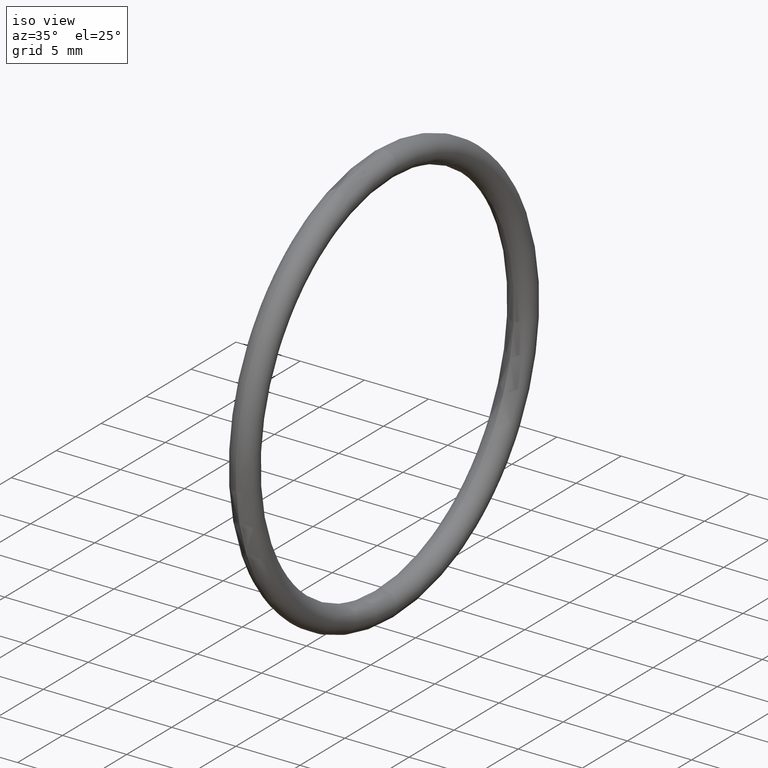
[diagram: clean part render]
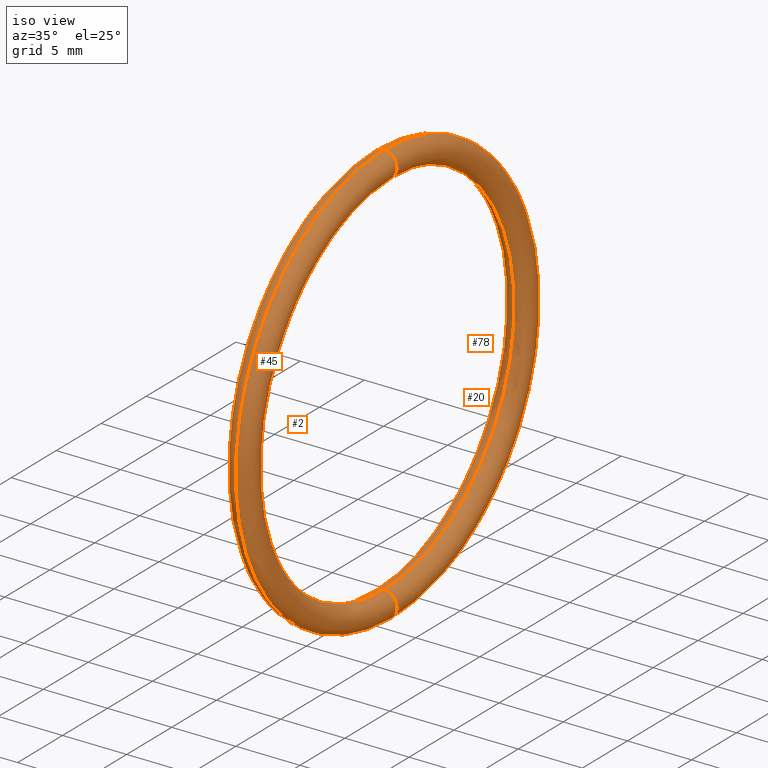
[diagram: same view with one multi-face feature highlighted, each face labeled with its STEP entity id]
A machine part, iso view. The highlighted faces form ONE feature: a constant-radius fillet chain: 4 tangent blend faces with common blend radius 1.016 mm. The faces share edges in the B-rep.
Their STEP definitions:
[1] entity #2 (Torus):
#1 = EDGE_CURVE ( 'NONE', #60, #59, #43, .T. ) ;
#2 = ADVANCED_FACE ( 'NONE', ( #44 ), #15, .T. ) ;
#11 = EDGE_CURVE ( 'NONE', #60, #65, #35, .T. ) ;
#14 = AXIS2_PLACEMENT_3D ( 'NONE', #16, #38, #37 ) ;
#15 = TOROIDAL_SURFACE ( 'NONE', #14, 0.6099999999999998800, 0.03999999999999996600 ) ;
#16 = CARTESIAN_POINT ( 'NONE',  ( 0.1000000000000000700, 0.0000000000000000000, 0.0000000000000000000 ) ) ;
#17 = EDGE_CURVE ( 'NONE', #65, #24, #100, .T. ) ;
#24 = VERTEX_POINT ( 'NONE', #48 ) ;
#25 = EDGE_CURVE ( 'NONE', #59, #24, #47, .T. ) ;
#28 = DIRECTION ( 'NONE',  ( 0.0000000000000000000, 0.0000000000000000000, 1.000000000000000000 ) ) ;
#29 = DIRECTION ( 'NONE',  ( -1.000000000000000000, 0.0000000000000000000, 0.0000000000000000000 ) ) ;
#30 = CARTESIAN_POINT ( 'NONE',  ( 0.1000000000000000700, 0.0000000000000000000, 0.0000000000000000000 ) ) ;
#31 = AXIS2_PLACEMENT_3D ( 'NONE', #30, #29, #28 ) ;
#32 = DIRECTION ( 'NONE',  ( -1.000000000000000000, 0.0000000000000000000, 0.0000000000000000000 ) ) ;
#33 = CARTESIAN_POINT ( 'NONE',  ( 0.1000000000000000700, 0.0000000000000000000, 0.0000000000000000000 ) ) ;
#34 = AXIS2_PLACEMENT_3D ( 'NONE', #33, #32, #102 ) ;
#35 = CIRCLE ( 'NONE', #34, 0.5699999999999999500 ) ;
#36 = CARTESIAN_POINT ( 'NONE',  ( 0.1000000000000000700, 0.0000000000000000000, 0.6099999999999998800 ) ) ;
#37 = DIRECTION ( 'NONE',  ( 0.0000000000000000000, 0.0000000000000000000, 1.000000000000000000 ) ) ;
#38 = DIRECTION ( 'NONE',  ( -1.000000000000000000, 0.0000000000000000000, 0.0000000000000000000 ) ) ;
#39 = DIRECTION ( 'NONE',  ( 0.0000000000000000000, -1.224646799147351000E-016, 1.000000000000000000 ) ) ;
#40 = DIRECTION ( 'NONE',  ( 0.0000000000000000000, 1.000000000000000000, 1.224646799147353200E-016 ) ) ;
#41 = CARTESIAN_POINT ( 'NONE',  ( 0.1000000000000000700, 7.470345474798854000E-017, -0.6099999999999998800 ) ) ;
#42 = AXIS2_PLACEMENT_3D ( 'NONE', #41, #40, #39 ) ;
#43 = CIRCLE ( 'NONE', #42, 0.03999999999999998000 ) ;
#44 = FACE_OUTER_BOUND ( 'NONE', #103, .T. ) ;
#47 = CIRCLE ( 'NONE', #31, 0.6499999999999999100 ) ;
#48 = CARTESIAN_POINT ( 'NONE',  ( 0.1000000000000000700, 0.0000000000000000000, 0.6499999999999999100 ) ) ;
#59 = VERTEX_POINT ( 'NONE', #87 ) ;
#60 = VERTEX_POINT ( 'NONE', #86 ) ;
#61 = ORIENTED_EDGE ( 'NONE', *, *, #1, .F. ) ;
#65 = VERTEX_POINT ( 'NONE', #80 ) ;
#80 = CARTESIAN_POINT ( 'NONE',  ( 0.1000000000000000700, 0.0000000000000000000, 0.5699999999999999500 ) ) ;
#86 = CARTESIAN_POINT ( 'NONE',  ( 0.1000000000000000700, 6.980486755139913800E-017, -0.5699999999999999500 ) ) ;
#87 = CARTESIAN_POINT ( 'NONE',  ( 0.1000000000000000700, 7.960204194457794200E-017, -0.6499999999999999100 ) ) ;
#97 = DIRECTION ( 'NONE',  ( 0.0000000000000000000, 0.0000000000000000000, -1.000000000000000000 ) ) ;
#98 = DIRECTION ( 'NONE',  ( 0.0000000000000000000, -1.000000000000000000, 0.0000000000000000000 ) ) ;
#99 = AXIS2_PLACEMENT_3D ( 'NONE', #36, #98, #97 ) ;
#100 = CIRCLE ( 'NONE', #99, 0.03999999999999998000 ) ;
#102 = DIRECTION ( 'NONE',  ( 0.0000000000000000000, 0.0000000000000000000, 1.000000000000000000 ) ) ;
#103 = EDGE_LOOP ( 'NONE', ( #104, #61, #105, #106 ) ) ;
#104 = ORIENTED_EDGE ( 'NONE', *, *, #25, .F. ) ;
#105 = ORIENTED_EDGE ( 'NONE', *, *, #11, .T. ) ;
#106 = ORIENTED_EDGE ( 'NONE', *, *, #17, .T. ) ;
[2] entity #78 (Torus):
#1 = EDGE_CURVE ( 'NONE', #60, #59, #43, .T. ) ;
#5 = EDGE_LOOP ( 'NONE', ( #6, #7, #18, #13 ) ) ;
#6 = ORIENTED_EDGE ( 'NONE', *, *, #23, .F. ) ;
#7 = ORIENTED_EDGE ( 'NONE', *, *, #17, .F. ) ;
#13 = ORIENTED_EDGE ( 'NONE', *, *, #1, .T. ) ;
#17 = EDGE_CURVE ( 'NONE', #65, #24, #100, .T. ) ;
#18 = ORIENTED_EDGE ( 'NONE', *, *, #77, .T. ) ;
#23 = EDGE_CURVE ( 'NONE', #24, #59, #53, .T. ) ;
#24 = VERTEX_POINT ( 'NONE', #48 ) ;
#36 = CARTESIAN_POINT ( 'NONE',  ( 0.1000000000000000700, 0.0000000000000000000, 0.6099999999999998800 ) ) ;
#39 = DIRECTION ( 'NONE',  ( 0.0000000000000000000, -1.224646799147351000E-016, 1.000000000000000000 ) ) ;
#40 = DIRECTION ( 'NONE',  ( 0.0000000000000000000, 1.000000000000000000, 1.224646799147353200E-016 ) ) ;
#41 = CARTESIAN_POINT ( 'NONE',  ( 0.1000000000000000700, 7.470345474798854000E-017, -0.6099999999999998800 ) ) ;
#42 = AXIS2_PLACEMENT_3D ( 'NONE', #41, #40, #39 ) ;
#43 = CIRCLE ( 'NONE', #42, 0.03999999999999998000 ) ;
#48 = CARTESIAN_POINT ( 'NONE',  ( 0.1000000000000000700, 0.0000000000000000000, 0.6499999999999999100 ) ) ;
#49 = DIRECTION ( 'NONE',  ( 0.0000000000000000000, 0.0000000000000000000, 1.000000000000000000 ) ) ;
#50 = DIRECTION ( 'NONE',  ( -1.000000000000000000, 0.0000000000000000000, 0.0000000000000000000 ) ) ;
#51 = CARTESIAN_POINT ( 'NONE',  ( 0.1000000000000000700, 0.0000000000000000000, 0.0000000000000000000 ) ) ;
#52 = AXIS2_PLACEMENT_3D ( 'NONE', #51, #50, #49 ) ;
#53 = CIRCLE ( 'NONE', #52, 0.6499999999999999100 ) ;
#59 = VERTEX_POINT ( 'NONE', #87 ) ;
#60 = VERTEX_POINT ( 'NONE', #86 ) ;
#65 = VERTEX_POINT ( 'NONE', #80 ) ;
#77 = EDGE_CURVE ( 'NONE', #65, #60, #119, .T. ) ;
#78 = ADVANCED_FACE ( 'NONE', ( #115 ), #114, .T. ) ;
#79 = CARTESIAN_POINT ( 'NONE',  ( 0.1000000000000000700, 0.0000000000000000000, 0.0000000000000000000 ) ) ;
#80 = CARTESIAN_POINT ( 'NONE',  ( 0.1000000000000000700, 0.0000000000000000000, 0.5699999999999999500 ) ) ;
#86 = CARTESIAN_POINT ( 'NONE',  ( 0.1000000000000000700, 6.980486755139913800E-017, -0.5699999999999999500 ) ) ;
#87 = CARTESIAN_POINT ( 'NONE',  ( 0.1000000000000000700, 7.960204194457794200E-017, -0.6499999999999999100 ) ) ;
#97 = DIRECTION ( 'NONE',  ( 0.0000000000000000000, 0.0000000000000000000, -1.000000000000000000 ) ) ;
#98 = DIRECTION ( 'NONE',  ( 0.0000000000000000000, -1.000000000000000000, 0.0000000000000000000 ) ) ;
#99 = AXIS2_PLACEMENT_3D ( 'NONE', #36, #98, #97 ) ;
#100 = CIRCLE ( 'NONE', #99, 0.03999999999999998000 ) ;
#109 = DIRECTION ( 'NONE',  ( 0.0000000000000000000, 0.0000000000000000000, 1.000000000000000000 ) ) ;
#110 = DIRECTION ( 'NONE',  ( -1.000000000000000000, 0.0000000000000000000, 0.0000000000000000000 ) ) ;
#111 = CARTESIAN_POINT ( 'NONE',  ( 0.1000000000000000700, 0.0000000000000000000, 0.0000000000000000000 ) ) ;
#112 = AXIS2_PLACEMENT_3D ( 'NONE', #111, #110, #109 ) ;
#114 = TOROIDAL_SURFACE ( 'NONE', #112, 0.6099999999999998800, 0.03999999999999996600 ) ;
#115 = FACE_OUTER_BOUND ( 'NONE', #5, .T. ) ;
#116 = DIRECTION ( 'NONE',  ( 0.0000000000000000000, 0.0000000000000000000, 1.000000000000000000 ) ) ;
#117 = DIRECTION ( 'NONE',  ( -1.000000000000000000, 0.0000000000000000000, 0.0000000000000000000 ) ) ;
#118 = AXIS2_PLACEMENT_3D ( 'NONE', #79, #117, #116 ) ;
#119 = CIRCLE ( 'NONE', #118, 0.5699999999999999500 ) ;
[3] entity #20 (Torus):
#12 = EDGE_LOOP ( 'NONE', ( #21, #22, #75, #76 ) ) ;
#20 = ADVANCED_FACE ( 'NONE', ( #101 ), #70, .T. ) ;
#21 = ORIENTED_EDGE ( 'NONE', *, *, #64, .F. ) ;
#22 = ORIENTED_EDGE ( 'NONE', *, *, #23, .T. ) ;
#23 = EDGE_CURVE ( 'NONE', #24, #59, #53, .T. ) ;
#24 = VERTEX_POINT ( 'NONE', #48 ) ;
#46 = EDGE_CURVE ( 'NONE', #59, #60, #91, .T. ) ;
#48 = CARTESIAN_POINT ( 'NONE',  ( 0.1000000000000000700, 0.0000000000000000000, 0.6499999999999999100 ) ) ;
#49 = DIRECTION ( 'NONE',  ( 0.0000000000000000000, 0.0000000000000000000, 1.000000000000000000 ) ) ;
#50 = DIRECTION ( 'NONE',  ( -1.000000000000000000, 0.0000000000000000000, 0.0000000000000000000 ) ) ;
#51 = CARTESIAN_POINT ( 'NONE',  ( 0.1000000000000000700, 0.0000000000000000000, 0.0000000000000000000 ) ) ;
#52 = AXIS2_PLACEMENT_3D ( 'NONE', #51, #50, #49 ) ;
#53 = CIRCLE ( 'NONE', #52, 0.6499999999999999100 ) ;
#59 = VERTEX_POINT ( 'NONE', #87 ) ;
#60 = VERTEX_POINT ( 'NONE', #86 ) ;
#64 = EDGE_CURVE ( 'NONE', #24, #65, #85, .T. ) ;
#65 = VERTEX_POINT ( 'NONE', #80 ) ;
#67 = DIRECTION ( 'NONE',  ( 0.0000000000000000000, 0.0000000000000000000, 1.000000000000000000 ) ) ;
#68 = DIRECTION ( 'NONE',  ( -1.000000000000000000, 0.0000000000000000000, 0.0000000000000000000 ) ) ;
#69 = AXIS2_PLACEMENT_3D ( 'NONE', #71, #68, #67 ) ;
#70 = TOROIDAL_SURFACE ( 'NONE', #69, 0.6099999999999998800, 0.03999999999999996600 ) ;
#71 = CARTESIAN_POINT ( 'NONE',  ( 0.1000000000000000700, 0.0000000000000000000, 0.0000000000000000000 ) ) ;
#75 = ORIENTED_EDGE ( 'NONE', *, *, #46, .T. ) ;
#76 = ORIENTED_EDGE ( 'NONE', *, *, #77, .F. ) ;
#77 = EDGE_CURVE ( 'NONE', #65, #60, #119, .T. ) ;
#79 = CARTESIAN_POINT ( 'NONE',  ( 0.1000000000000000700, 0.0000000000000000000, 0.0000000000000000000 ) ) ;
#80 = CARTESIAN_POINT ( 'NONE',  ( 0.1000000000000000700, 0.0000000000000000000, 0.5699999999999999500 ) ) ;
#81 = DIRECTION ( 'NONE',  ( 0.0000000000000000000, 0.0000000000000000000, -1.000000000000000000 ) ) ;
#82 = DIRECTION ( 'NONE',  ( 0.0000000000000000000, -1.000000000000000000, 0.0000000000000000000 ) ) ;
#83 = CARTESIAN_POINT ( 'NONE',  ( 0.1000000000000000700, 0.0000000000000000000, 0.6099999999999998800 ) ) ;
#84 = AXIS2_PLACEMENT_3D ( 'NONE', #83, #82, #81 ) ;
#85 = CIRCLE ( 'NONE', #84, 0.03999999999999998000 ) ;
#86 = CARTESIAN_POINT ( 'NONE',  ( 0.1000000000000000700, 6.980486755139913800E-017, -0.5699999999999999500 ) ) ;
#87 = CARTESIAN_POINT ( 'NONE',  ( 0.1000000000000000700, 7.960204194457794200E-017, -0.6499999999999999100 ) ) ;
#88 = DIRECTION ( 'NONE',  ( 0.0000000000000000000, -1.224646799147351000E-016, 1.000000000000000000 ) ) ;
#89 = DIRECTION ( 'NONE',  ( 0.0000000000000000000, 1.000000000000000000, 1.224646799147353200E-016 ) ) ;
#90 = AXIS2_PLACEMENT_3D ( 'NONE', #96, #89, #88 ) ;
#91 = CIRCLE ( 'NONE', #90, 0.03999999999999998000 ) ;
#96 = CARTESIAN_POINT ( 'NONE',  ( 0.1000000000000000700, 7.470345474798854000E-017, -0.6099999999999998800 ) ) ;
#101 = FACE_OUTER_BOUND ( 'NONE', #12, .T. ) ;
#116 = DIRECTION ( 'NONE',  ( 0.0000000000000000000, 0.0000000000000000000, 1.000000000000000000 ) ) ;
#117 = DIRECTION ( 'NONE',  ( -1.000000000000000000, 0.0000000000000000000, 0.0000000000000000000 ) ) ;
#118 = AXIS2_PLACEMENT_3D ( 'NONE', #79, #117, #116 ) ;
#119 = CIRCLE ( 'NONE', #118, 0.5699999999999999500 ) ;
[4] entity #45 (Torus):
#3 = EDGE_LOOP ( 'NONE', ( #58, #4, #63, #10 ) ) ;
#4 = ORIENTED_EDGE ( 'NONE', *, *, #25, .T. ) ;
#10 = ORIENTED_EDGE ( 'NONE', *, *, #11, .F. ) ;
#11 = EDGE_CURVE ( 'NONE', #60, #65, #35, .T. ) ;
#24 = VERTEX_POINT ( 'NONE', #48 ) ;
#25 = EDGE_CURVE ( 'NONE', #59, #24, #47, .T. ) ;
#26 = TOROIDAL_SURFACE ( 'NONE', #95, 0.6099999999999998800, 0.03999999999999996600 ) ;
#27 = FACE_OUTER_BOUND ( 'NONE', #3, .T. ) ;
#28 = DIRECTION ( 'NONE',  ( 0.0000000000000000000, 0.0000000000000000000, 1.000000000000000000 ) ) ;
#29 = DIRECTION ( 'NONE',  ( -1.000000000000000000, 0.0000000000000000000, 0.0000000000000000000 ) ) ;
#30 = CARTESIAN_POINT ( 'NONE',  ( 0.1000000000000000700, 0.0000000000000000000, 0.0000000000000000000 ) ) ;
#31 = AXIS2_PLACEMENT_3D ( 'NONE', #30, #29, #28 ) ;
#32 = DIRECTION ( 'NONE',  ( -1.000000000000000000, 0.0000000000000000000, 0.0000000000000000000 ) ) ;
#33 = CARTESIAN_POINT ( 'NONE',  ( 0.1000000000000000700, 0.0000000000000000000, 0.0000000000000000000 ) ) ;
#34 = AXIS2_PLACEMENT_3D ( 'NONE', #33, #32, #102 ) ;
#35 = CIRCLE ( 'NONE', #34, 0.5699999999999999500 ) ;
#45 = ADVANCED_FACE ( 'NONE', ( #27 ), #26, .T. ) ;
#46 = EDGE_CURVE ( 'NONE', #59, #60, #91, .T. ) ;
#47 = CIRCLE ( 'NONE', #31, 0.6499999999999999100 ) ;
#48 = CARTESIAN_POINT ( 'NONE',  ( 0.1000000000000000700, 0.0000000000000000000, 0.6499999999999999100 ) ) ;
#58 = ORIENTED_EDGE ( 'NONE', *, *, #46, .F. ) ;
#59 = VERTEX_POINT ( 'NONE', #87 ) ;
#60 = VERTEX_POINT ( 'NONE', #86 ) ;
#63 = ORIENTED_EDGE ( 'NONE', *, *, #64, .T. ) ;
#64 = EDGE_CURVE ( 'NONE', #24, #65, #85, .T. ) ;
#65 = VERTEX_POINT ( 'NONE', #80 ) ;
#80 = CARTESIAN_POINT ( 'NONE',  ( 0.1000000000000000700, 0.0000000000000000000, 0.5699999999999999500 ) ) ;
#81 = DIRECTION ( 'NONE',  ( 0.0000000000000000000, 0.0000000000000000000, -1.000000000000000000 ) ) ;
#82 = DIRECTION ( 'NONE',  ( 0.0000000000000000000, -1.000000000000000000, 0.0000000000000000000 ) ) ;
#83 = CARTESIAN_POINT ( 'NONE',  ( 0.1000000000000000700, 0.0000000000000000000, 0.6099999999999998800 ) ) ;
#84 = AXIS2_PLACEMENT_3D ( 'NONE', #83, #82, #81 ) ;
#85 = CIRCLE ( 'NONE', #84, 0.03999999999999998000 ) ;
#86 = CARTESIAN_POINT ( 'NONE',  ( 0.1000000000000000700, 6.980486755139913800E-017, -0.5699999999999999500 ) ) ;
#87 = CARTESIAN_POINT ( 'NONE',  ( 0.1000000000000000700, 7.960204194457794200E-017, -0.6499999999999999100 ) ) ;
#88 = DIRECTION ( 'NONE',  ( 0.0000000000000000000, -1.224646799147351000E-016, 1.000000000000000000 ) ) ;
#89 = DIRECTION ( 'NONE',  ( 0.0000000000000000000, 1.000000000000000000, 1.224646799147353200E-016 ) ) ;
#90 = AXIS2_PLACEMENT_3D ( 'NONE', #96, #89, #88 ) ;
#91 = CIRCLE ( 'NONE', #90, 0.03999999999999998000 ) ;
#92 = DIRECTION ( 'NONE',  ( 0.0000000000000000000, 0.0000000000000000000, 1.000000000000000000 ) ) ;
#93 = DIRECTION ( 'NONE',  ( -1.000000000000000000, 0.0000000000000000000, 0.0000000000000000000 ) ) ;
#94 = CARTESIAN_POINT ( 'NONE',  ( 0.1000000000000000700, 0.0000000000000000000, 0.0000000000000000000 ) ) ;
#95 = AXIS2_PLACEMENT_3D ( 'NONE', #94, #93, #92 ) ;
#96 = CARTESIAN_POINT ( 'NONE',  ( 0.1000000000000000700, 7.470345474798854000E-017, -0.6099999999999998800 ) ) ;
#102 = DIRECTION ( 'NONE',  ( 0.0000000000000000000, 0.0000000000000000000, 1.000000000000000000 ) ) ;